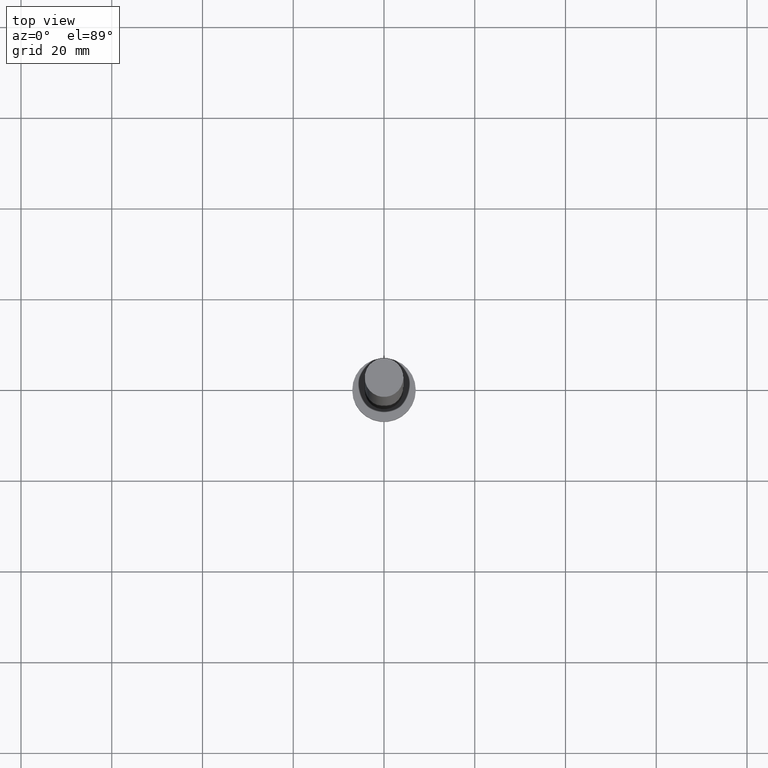
[diagram: clean part render]
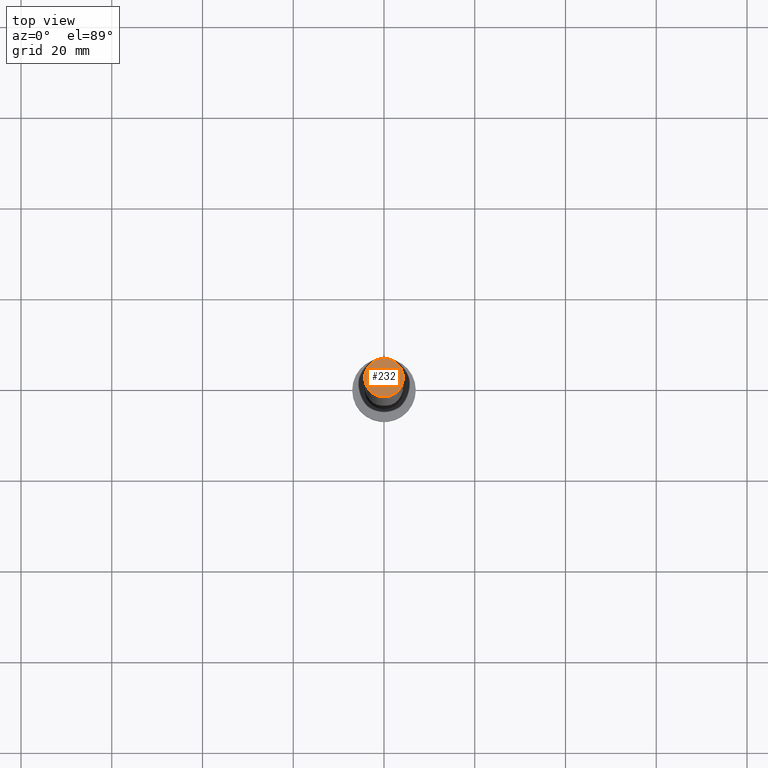
[diagram: same view with one face highlighted and labeled with its STEP entity id]
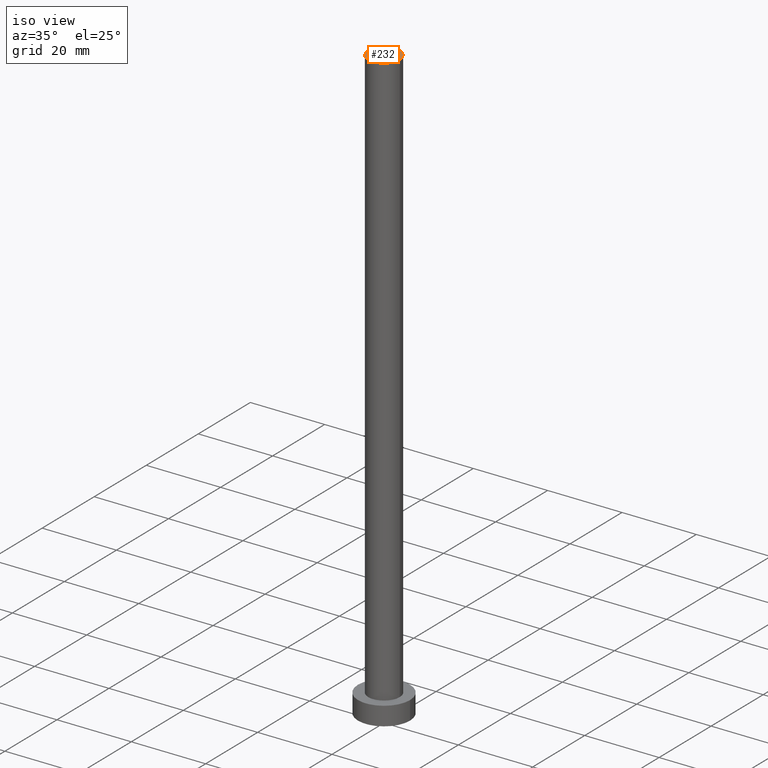
[diagram: same view with one face highlighted and labeled with its STEP entity id]
A machine part, top view. The second image highlights one B-rep face of the part: STEP entity #232.
A second angle (iso view) of the same face is appended — the face is thin or edge-on in the first view.
In plain terms, the highlighted planar face has unit normal (0, 0, 1).
Its self-contained STEP definition (entity closure, byte-faithful):
#8 = DIRECTION ( 'NONE',  ( 0.000000000000000000, 0.000000000000000000, 1.000000000000000000 ) ) ;
#12 = CIRCLE ( 'NONE', #212, 4.250000000000000000 ) ;
#14 = CARTESIAN_POINT ( 'NONE',  ( -4.250000000000000000, 0.000000000000000000, 160.0000000000000000 ) ) ;
#25 = AXIS2_PLACEMENT_3D ( 'NONE', #131, #210, #47 ) ;
#32 = DIRECTION ( 'NONE',  ( 1.000000000000000000, 0.000000000000000000, 0.000000000000000000 ) ) ;
#47 = DIRECTION ( 'NONE',  ( 1.000000000000000000, 0.000000000000000000, -0.000000000000000000 ) ) ;
#88 = FACE_OUTER_BOUND ( 'NONE', #184, .T. ) ;
#91 = DIRECTION ( 'NONE',  ( 0.000000000000000000, 0.000000000000000000, 1.000000000000000000 ) ) ;
#131 = CARTESIAN_POINT ( 'NONE',  ( 0.000000000000000000, 0.000000000000000000, 160.0000000000000000 ) ) ;
#132 = CARTESIAN_POINT ( 'NONE',  ( 0.000000000000000000, 0.000000000000000000, 160.0000000000000000 ) ) ;
#136 = EDGE_CURVE ( 'NONE', #153, #201, #206, .T. ) ;
#147 = CARTESIAN_POINT ( 'NONE',  ( 4.250000000000000000, 5.204748896376250699E-16, 160.0000000000000000 ) ) ;
#148 = CARTESIAN_POINT ( 'NONE',  ( 0.000000000000000000, 0.000000000000000000, 160.0000000000000000 ) ) ;
#153 = VERTEX_POINT ( 'NONE', #147 ) ;
#157 = DIRECTION ( 'NONE',  ( 1.000000000000000000, 0.000000000000000000, 0.000000000000000000 ) ) ;
#163 = PLANE ( 'NONE',  #25 ) ;
#180 = AXIS2_PLACEMENT_3D ( 'NONE', #132, #8, #32 ) ;
#184 = EDGE_LOOP ( 'NONE', ( #218, #200 ) ) ;
#200 = ORIENTED_EDGE ( 'NONE', *, *, #136, .T. ) ;
#201 = VERTEX_POINT ( 'NONE', #14 ) ;
#203 = EDGE_CURVE ( 'NONE', #201, #153, #12, .T. ) ;
#206 = CIRCLE ( 'NONE', #180, 4.250000000000000000 ) ;
#210 = DIRECTION ( 'NONE',  ( 0.000000000000000000, 0.000000000000000000, 1.000000000000000000 ) ) ;
#212 = AXIS2_PLACEMENT_3D ( 'NONE', #148, #91, #157 ) ;
#218 = ORIENTED_EDGE ( 'NONE', *, *, #203, .T. ) ;
#232 = ADVANCED_FACE ( 'NONE', ( #88 ), #163, .T. ) ;